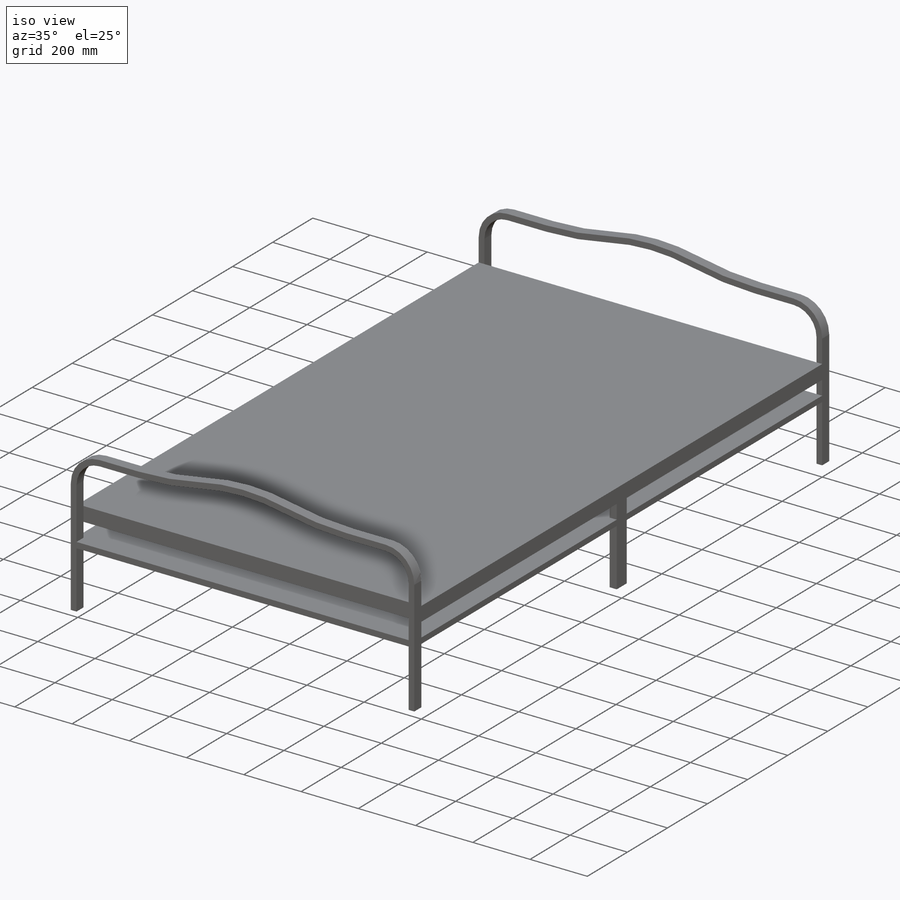
[diagram: iso view]
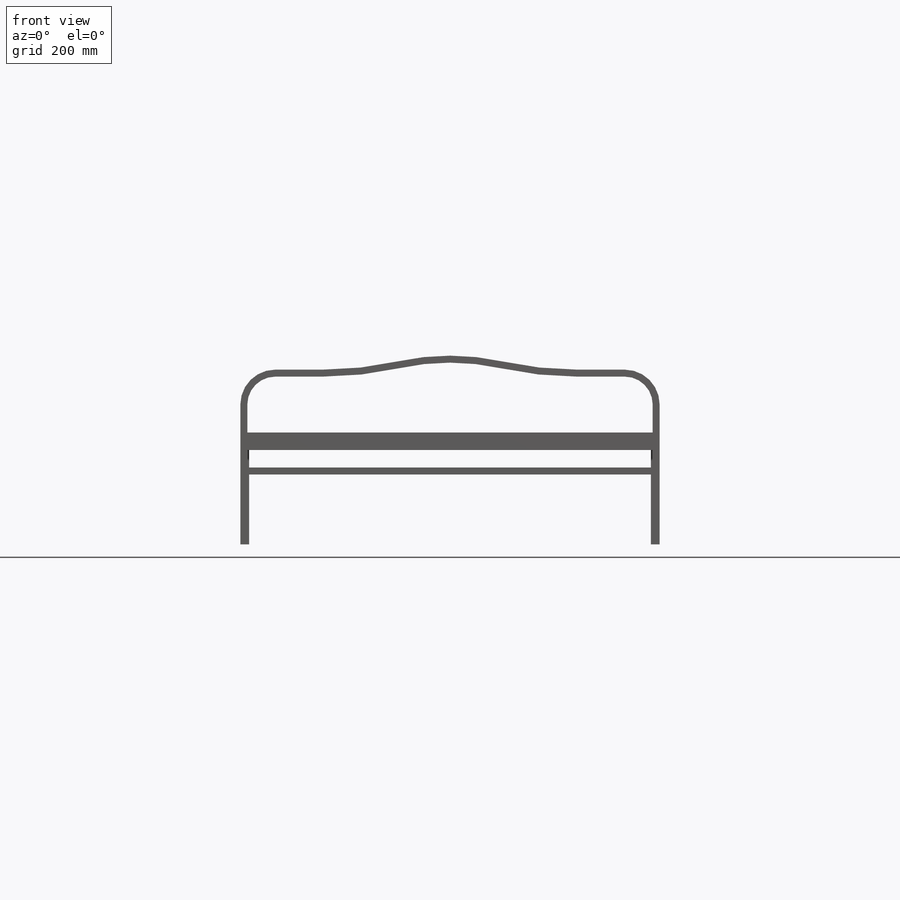
[diagram: front view]
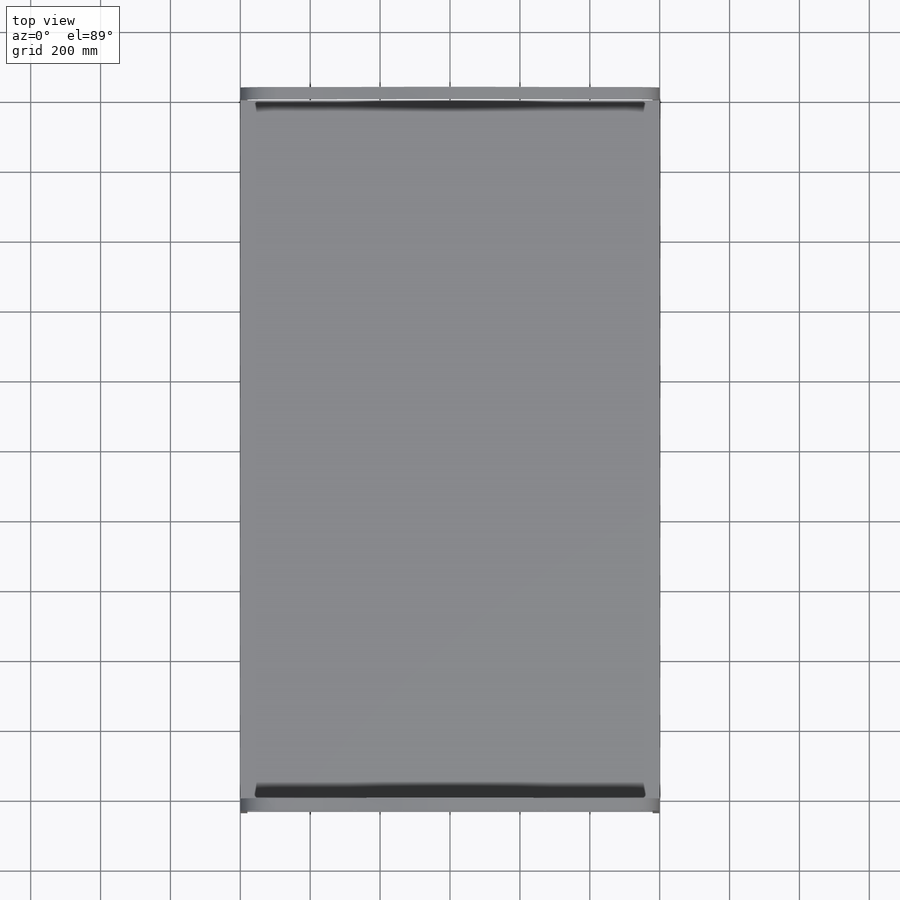
[diagram: top view]
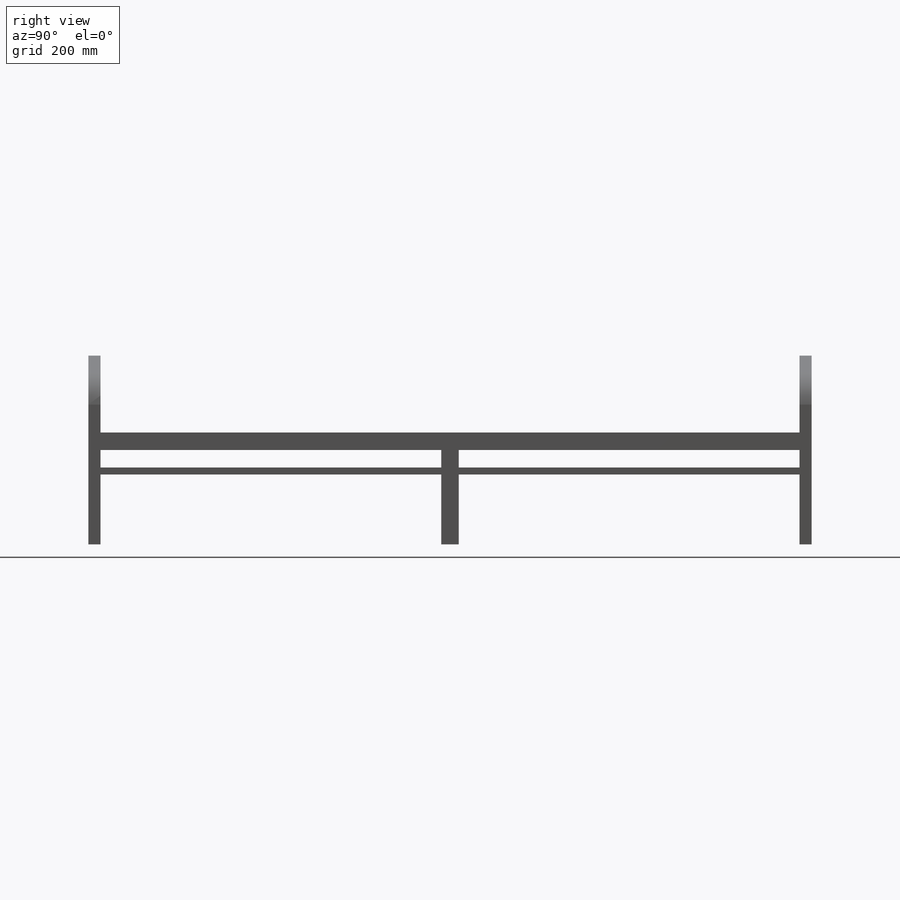
[diagram: right view]
SOLIDWORKS PART (.sldprt)
format: sldprt  version: not decoded by parser v0  size: 711,168 bytes
history: native  units: mm
features: sketch x4, extrude x4, plane x3, material x1, mirror x1 (+9 scaffold rows collapsed)
feature tree (22):
  scaffold x9  (default folders/planes/origin — collapsed)
  material  "柚木"
  plane  "前视基准面"
  plane  "上视基准面"
  plane  "右视基准面"
  sketch  "草图1"  dims[c1.D1=~89.46609mm c1.D2=~63.386906mm c2.D1=2000.0mm c2.D2=1200.0mm c2.D3=~629.620461mm]
  extrude  "凸台-拉伸1"  Depth=50mm
  sketch  "草图2"  dims[c1.D1=~209.090972mm c1.D2=~63.576004mm c2.D1=50.0mm c2.D2=25.0mm c2.D3=~184.090972mm]
  extrude  "凸台-拉伸2"  Depth=320mm
  mirror  "镜向1"
  sketch  "草图3"  dims[c1.D1=~101.843751mm c1.D3=100.0mm c2.D1=180.0mm c2.D2=220.0mm c2.D4=150.0mm c2.D5=~136.957702mm c3.D2=220.0mm c3.D1=35.0mm c3.D5=20.0mm c3.D6=10.0mm c3.D7=5.0mm]
  sketch  "草图4"  dims[D1=220.0mm D2=0.0mm]
  extrude  "拉伸-薄壁3"  Depth=20mm
  extrude  "镜向2"  [1 undecoded]
decode coverage: 7 of 9 modeling features carry decoded parameters
note: ~ marks probable driven/reference dimensions
note: 1 parameter value undecoded
note: suppression state not decoded; provenance and decode notes live in map.json
